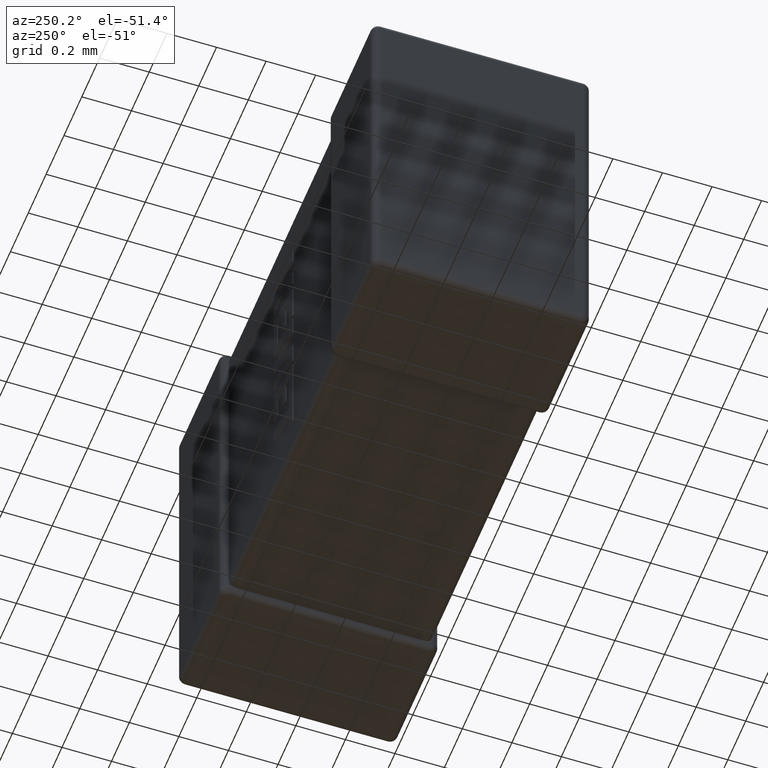
[diagram: clean part render]
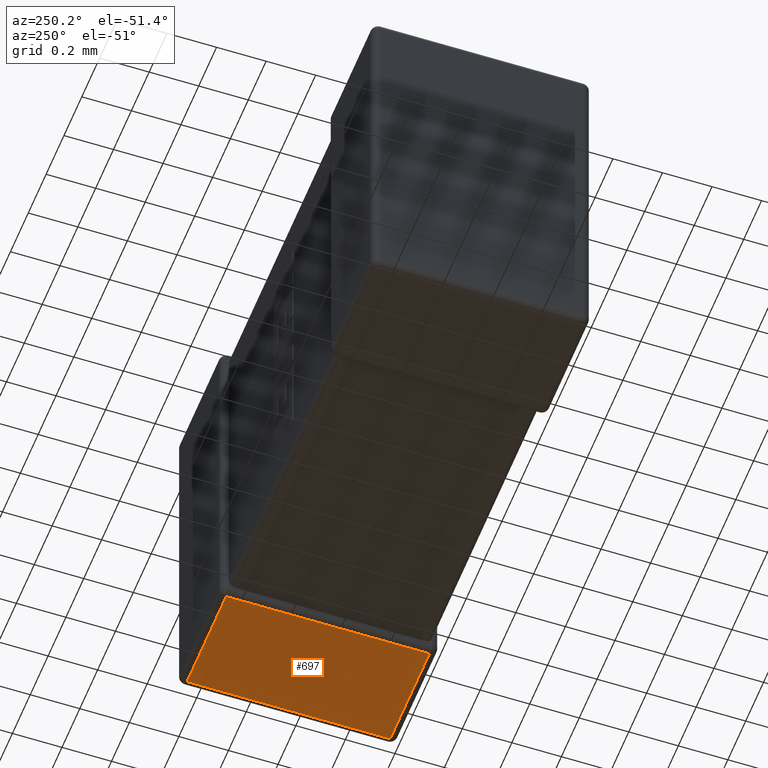
[diagram: same view with one face highlighted and labeled with its STEP entity id]
A machine part, auxiliary view. The second image highlights one B-rep face of the part: STEP entity #697.
In plain terms, the highlighted planar face has unit normal (0, 0, 1).
Its self-contained STEP definition (entity closure, byte-faithful):
#172 = EDGE_LOOP ( 'NONE', ( #3225, #2404, #3053, #3107 ) ) ;
#199 = DIRECTION ( 'NONE',  ( 1.000000000000000000, -0.000000000000000000, -0.000000000000000000 ) ) ;
#384 = VECTOR ( 'NONE', #2411, 1000.000000000000000 ) ;
#676 = DIRECTION ( 'NONE',  ( 0.000000000000000000, 1.000000000000000000, 0.000000000000000000 ) ) ;
#697 = ADVANCED_FACE ( 'NONE', ( #1306 ), #3116, .F. ) ;
#980 = CARTESIAN_POINT ( 'NONE',  ( 2.200000000000000178, 0.03015999999999999931, -1.449999999999999956 ) ) ;
#982 = CARTESIAN_POINT ( 'NONE',  ( 1.730160000000000142, 0.03015999999999999931, -1.449999999999999956 ) ) ;
#1212 = DIRECTION ( 'NONE',  ( 1.000000000000000000, 0.000000000000000000, -0.000000000000000000 ) ) ;
#1214 = EDGE_CURVE ( 'NONE', #1892, #4072, #3050, .T. ) ;
#1263 = EDGE_CURVE ( 'NONE', #2606, #1598, #1309, .T. ) ;
#1306 = FACE_OUTER_BOUND ( 'NONE', #172, .T. ) ;
#1309 = LINE ( 'NONE', #3442, #4606 ) ;
#1412 = EDGE_CURVE ( 'NONE', #1598, #1892, #3940, .T. ) ;
#1569 = CARTESIAN_POINT ( 'NONE',  ( 1.730160000000000142, 0.8498400000000000398, -1.449999999999999956 ) ) ;
#1577 = DIRECTION ( 'NONE',  ( 0.000000000000000000, 0.000000000000000000, 1.000000000000000000 ) ) ;
#1598 = VERTEX_POINT ( 'NONE', #4133 ) ;
#1785 = LINE ( 'NONE', #3234, #4010 ) ;
#1834 = DIRECTION ( 'NONE',  ( -0.000000000000000000, -1.000000000000000000, 0.000000000000000000 ) ) ;
#1850 = EDGE_CURVE ( 'NONE', #4072, #2606, #1785, .T. ) ;
#1892 = VERTEX_POINT ( 'NONE', #2195 ) ;
#2029 = CARTESIAN_POINT ( 'NONE',  ( 2.200000000000000178, 0.000000000000000000, -1.449999999999999956 ) ) ;
#2195 = CARTESIAN_POINT ( 'NONE',  ( 2.169840000000000213, 0.03015999999999999931, -1.449999999999999956 ) ) ;
#2404 = ORIENTED_EDGE ( 'NONE', *, *, #1850, .T. ) ;
#2411 = DIRECTION ( 'NONE',  ( -1.000000000000000000, -0.000000000000000000, 0.000000000000000000 ) ) ;
#2457 = CARTESIAN_POINT ( 'NONE',  ( 2.169840000000000213, 0.000000000000000000, -1.449999999999999956 ) ) ;
#2606 = VERTEX_POINT ( 'NONE', #1569 ) ;
#2940 = AXIS2_PLACEMENT_3D ( 'NONE', #2029, #1577, #1212 ) ;
#3013 = VECTOR ( 'NONE', #1834, 1000.000000000000000 ) ;
#3050 = LINE ( 'NONE', #980, #384 ) ;
#3053 = ORIENTED_EDGE ( 'NONE', *, *, #1263, .T. ) ;
#3107 = ORIENTED_EDGE ( 'NONE', *, *, #1412, .T. ) ;
#3116 = PLANE ( 'NONE',  #2940 ) ;
#3225 = ORIENTED_EDGE ( 'NONE', *, *, #1214, .T. ) ;
#3234 = CARTESIAN_POINT ( 'NONE',  ( 1.730160000000000142, 0.000000000000000000, -1.449999999999999956 ) ) ;
#3442 = CARTESIAN_POINT ( 'NONE',  ( 2.200000000000000178, 0.8498400000000000398, -1.449999999999999956 ) ) ;
#3940 = LINE ( 'NONE', #2457, #3013 ) ;
#4010 = VECTOR ( 'NONE', #676, 1000.000000000000000 ) ;
#4072 = VERTEX_POINT ( 'NONE', #982 ) ;
#4133 = CARTESIAN_POINT ( 'NONE',  ( 2.169840000000000213, 0.8498400000000000398, -1.449999999999999956 ) ) ;
#4606 = VECTOR ( 'NONE', #199, 1000.000000000000000 ) ;